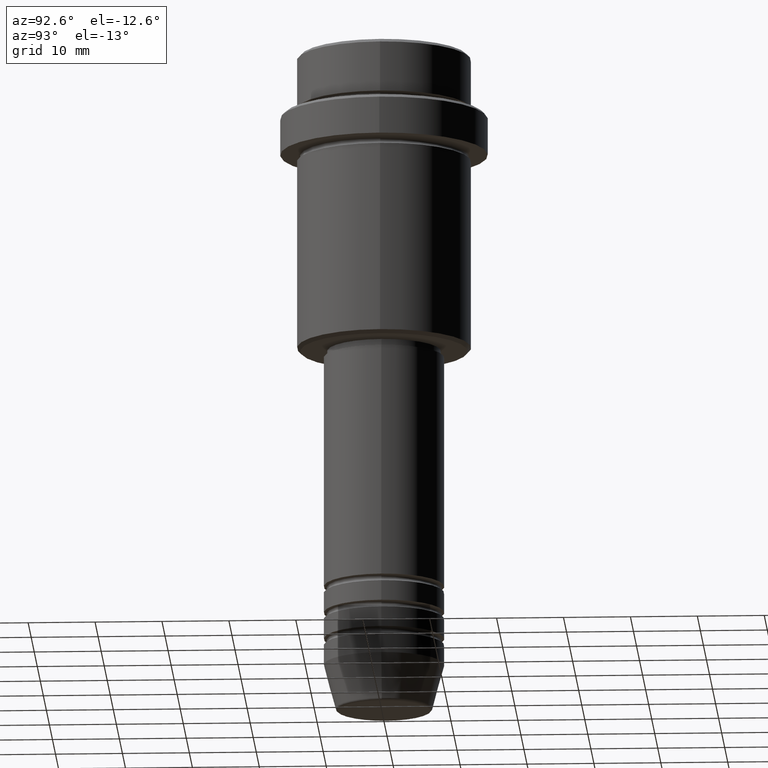
[diagram: clean part render]
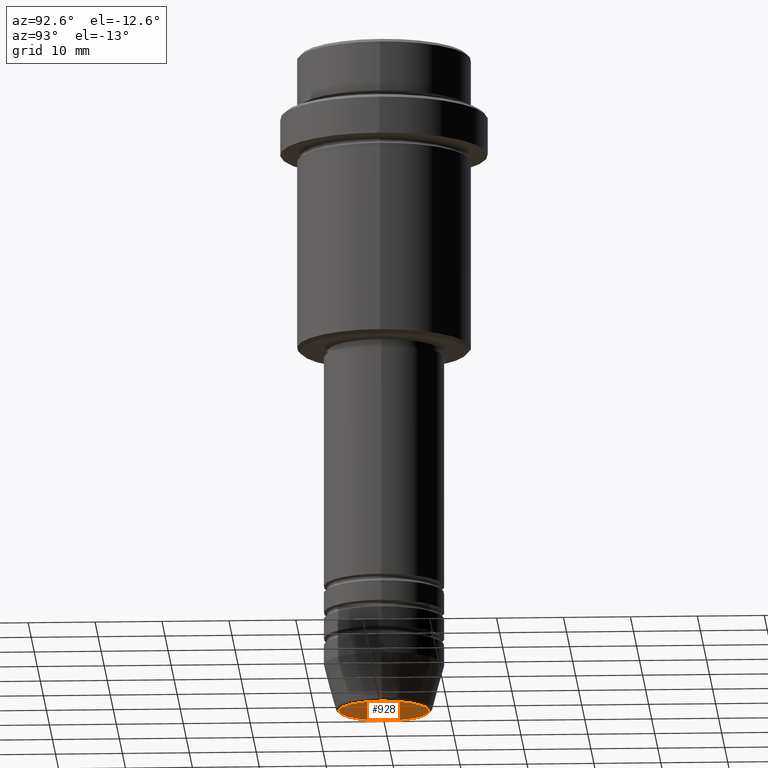
[diagram: same view with one face highlighted and labeled with its STEP entity id]
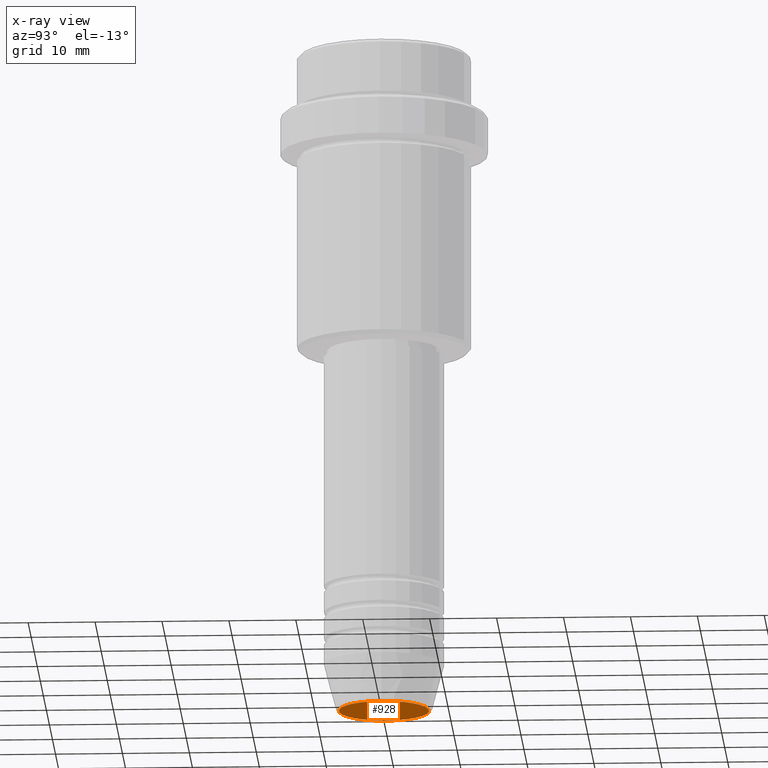
[diagram: x-ray of the same camera — body ghosted, the highlighted face saturated]
A machine part, auxiliary view. The second image highlights one B-rep face of the part: STEP entity #928.
The next image is the same camera in x-ray: the body ghosted, the highlighted face saturated — about 0% of this face is hidden behind the body in this view.
In plain terms, the highlighted planar face has unit normal (0, -0, 1).
Its self-contained STEP definition (entity closure, byte-faithful):
#4 = PLANE ( 'NONE',  #1093 ) ;
#34 = AXIS2_PLACEMENT_3D ( 'NONE', #441, #97, #212 ) ;
#51 = ORIENTED_EDGE ( 'NONE', *, *, #1370, .T. ) ;
#97 = DIRECTION ( 'NONE',  ( 0.000000000000000000, 0.000000000000000000, -1.000000000000000000 ) ) ;
#109 = CARTESIAN_POINT ( 'NONE',  ( -6.740692158992653837, 8.550696569392682723E-16, -100.0000000000000000 ) ) ;
#119 = DIRECTION ( 'NONE',  ( 0.000000000000000000, -0.000000000000000000, 1.000000000000000000 ) ) ;
#160 = CARTESIAN_POINT ( 'NONE',  ( 0.000000000000000000, 0.000000000000000000, -100.0000000000000000 ) ) ;
#209 = EDGE_CURVE ( 'NONE', #1118, #514, #771, .T. ) ;
#212 = DIRECTION ( 'NONE',  ( 1.000000000000000000, 0.000000000000000000, 0.000000000000000000 ) ) ;
#240 = CARTESIAN_POINT ( 'NONE',  ( 6.740692158992653837, 0.000000000000000000, -100.0000000000000000 ) ) ;
#441 = CARTESIAN_POINT ( 'NONE',  ( 0.000000000000000000, 0.000000000000000000, -100.0000000000000000 ) ) ;
#449 = DIRECTION ( 'NONE',  ( 1.000000000000000000, 0.000000000000000000, 0.000000000000000000 ) ) ;
#514 = VERTEX_POINT ( 'NONE', #109 ) ;
#580 = EDGE_LOOP ( 'NONE', ( #803, #51 ) ) ;
#708 = DIRECTION ( 'NONE',  ( 0.000000000000000000, 0.000000000000000000, -1.000000000000000000 ) ) ;
#771 = CIRCLE ( 'NONE', #34, 6.740692158992653837 ) ;
#803 = ORIENTED_EDGE ( 'NONE', *, *, #209, .T. ) ;
#892 = CIRCLE ( 'NONE', #1141, 6.740692158992653837 ) ;
#928 = ADVANCED_FACE ( 'NONE', ( #1207 ), #4, .F. ) ;
#1007 = CARTESIAN_POINT ( 'NONE',  ( 0.000000000000000000, 0.000000000000000000, -100.0000000000000000 ) ) ;
#1093 = AXIS2_PLACEMENT_3D ( 'NONE', #1007, #119, #449 ) ;
#1118 = VERTEX_POINT ( 'NONE', #240 ) ;
#1140 = DIRECTION ( 'NONE',  ( 1.000000000000000000, 0.000000000000000000, 0.000000000000000000 ) ) ;
#1141 = AXIS2_PLACEMENT_3D ( 'NONE', #160, #708, #1140 ) ;
#1207 = FACE_OUTER_BOUND ( 'NONE', #580, .T. ) ;
#1370 = EDGE_CURVE ( 'NONE', #514, #1118, #892, .T. ) ;